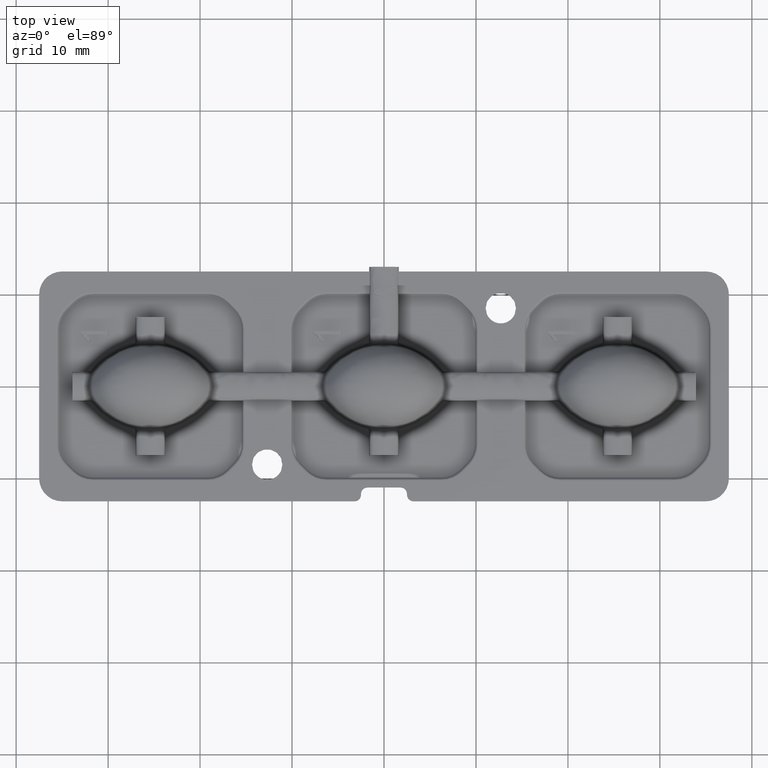
[diagram: clean part render]
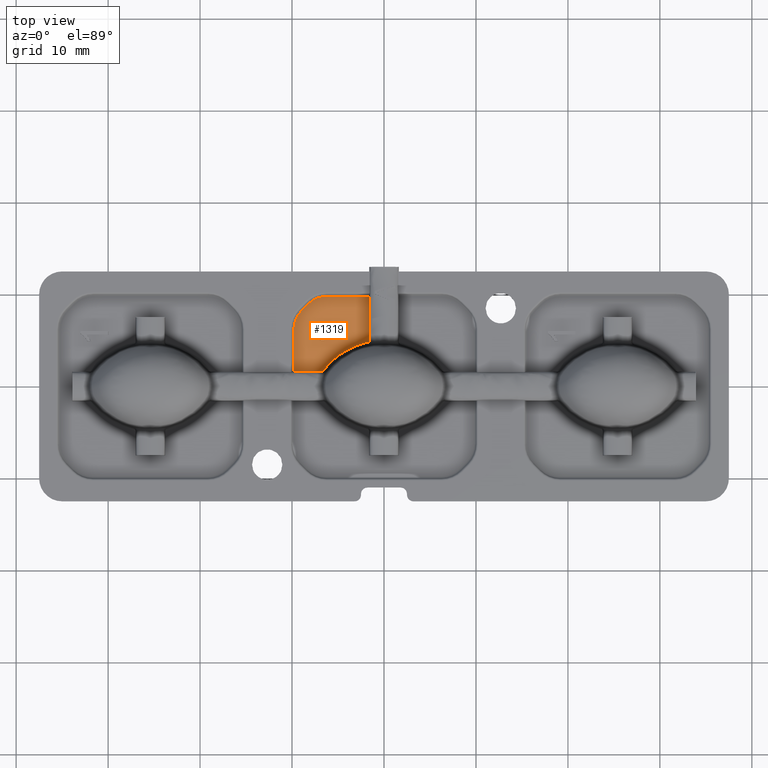
[diagram: same view with one face highlighted and labeled with its STEP entity id]
A machine part, top view. The second image highlights one B-rep face of the part: STEP entity #1319.
In plain terms, the highlighted planar face has unit normal (-0, 0, 1).
Its self-contained STEP definition (entity closure, byte-faithful):
#231 = ORIENTED_EDGE ( 'NONE', *, *, #7504, .T. ) ;
#232 = CARTESIAN_POINT ( 'NONE',  ( -6.937740384615385600, 5.603846153846160600, 1.200000000000000000 ) ) ;
#258 = CARTESIAN_POINT ( 'NONE',  ( -7.558040885806706300, 5.718811044031059300, 1.200000000000164900 ) ) ;
#305 = DIRECTION ( 'NONE',  ( 0.0000000000000000000, 1.000000000000000000, 0.0000000000000000000 ) ) ;
#363 = EDGE_CURVE ( 'NONE', #9153, #15449, #11851, .T. ) ;
#445 = CARTESIAN_POINT ( 'NONE',  ( -1.604986396231099300, 4.868196155882727400, 1.200000000000000200 ) ) ;
#459 = CARTESIAN_POINT ( 'NONE',  ( -4.011915374075210900, 3.972929825219550600, 1.200000000000000000 ) ) ;
#619 = VERTEX_POINT ( 'NONE', #927 ) ;
#694 = VERTEX_POINT ( 'NONE', #1237 ) ;
#786 = ORIENTED_EDGE ( 'NONE', *, *, #9540, .T. ) ;
#793 = ORIENTED_EDGE ( 'NONE', *, *, #16881, .T. ) ;
#845 = LINE ( 'NONE', #6340, #4031 ) ;
#890 = VERTEX_POINT ( 'NONE', #445 ) ;
#927 = CARTESIAN_POINT ( 'NONE',  ( -7.600000000000000500, 5.740865384615391400, 1.199999999999999700 ) ) ;
#1237 = CARTESIAN_POINT ( 'NONE',  ( -4.600000000000000500, 5.988461538461544700, 1.200000000000000000 ) ) ;
#1319 = ADVANCED_FACE ( 'NONE', ( #6639, #14218 ), #5126, .T. ) ;
#1386 = EDGE_CURVE ( 'NONE', #3034, #9153, #9803, .T. ) ;
#1436 = CARTESIAN_POINT ( 'NONE',  ( -7.000000000000000900, 6.257359312880711700, 1.200000000000000000 ) ) ;
#1533 = CARTESIAN_POINT ( 'NONE',  ( -6.257359312880714300, 9.790225092205680800, 1.200000000000000000 ) ) ;
#1596 = CARTESIAN_POINT ( 'NONE',  ( -6.823325650368919200, 5.475331326994972200, 1.200000000000036400 ) ) ;
#1601 = ORIENTED_EDGE ( 'NONE', *, *, #2574, .T. ) ;
#1777 = LINE ( 'NONE', #16281, #16136 ) ;
#1831 = CARTESIAN_POINT ( 'NONE',  ( -2.606174863178185600, 4.593725650440077900, 1.199999999999995500 ) ) ;
#1910 = CARTESIAN_POINT ( 'NONE',  ( -7.600000000000000500, 5.988461538461544700, 1.200000000000000000 ) ) ;
#2081 = DIRECTION ( 'NONE',  ( 1.156482317317871700E-016, -1.000000000000000000, 0.0000000000000000000 ) ) ;
#2295 = ORIENTED_EDGE ( 'NONE', *, *, #15773, .T. ) ;
#2375 = CARTESIAN_POINT ( 'NONE',  ( -8.601666740175854600, 8.601666740175849300, 1.200000000000000000 ) ) ;
#2450 = VECTOR ( 'NONE', #13149, 999.9999999999998900 ) ;
#2574 = EDGE_CURVE ( 'NONE', #5954, #694, #1777, .T. ) ;
#2813 = DIRECTION ( 'NONE',  ( 1.000000000000000000, 0.0000000000000000000, 0.0000000000000000000 ) ) ;
#2814 = LINE ( 'NONE', #10785, #16713 ) ;
#2978 = CARTESIAN_POINT ( 'NONE',  ( -6.722854076430256700, 5.335570782332855100, 1.200000000000028600 ) ) ;
#3034 = VERTEX_POINT ( 'NONE', #13069 ) ;
#3194 = CARTESIAN_POINT ( 'NONE',  ( -1.604986396231099300, 4.868196155882727400, 1.200000000000000200 ) ) ;
#3243 = ORIENTED_EDGE ( 'NONE', *, *, #16773, .T. ) ;
#3339 = CARTESIAN_POINT ( 'NONE',  ( -6.257359312880714300, 6.999999999999999100, 1.200000000000000000 ) ) ;
#3395 = CARTESIAN_POINT ( 'NONE',  ( -6.850000000000001400, 4.911538461538469000, 1.200000000000000000 ) ) ;
#3534 = VECTOR ( 'NONE', #2081, 1000.000000000000000 ) ;
#3666 = CARTESIAN_POINT ( 'NONE',  ( -9.790225092205682600, 6.257359312880711700, 1.200000000000000000 ) ) ;
#3714 = EDGE_CURVE ( 'NONE', #4816, #890, #11322, .T. ) ;
#3782 = VERTEX_POINT ( 'NONE', #4524 ) ;
#3810 = ORIENTED_EDGE ( 'NONE', *, *, #8228, .T. ) ;
#3895 = CARTESIAN_POINT ( 'NONE',  ( -4.600000000000000500, 5.603846153846160600, 1.200000000000000000 ) ) ;
#4026 = LINE ( 'NONE', #4317, #10772 ) ;
#4031 = VECTOR ( 'NONE', #7699, 1000.000000000000000 ) ;
#4200 = EDGE_CURVE ( 'NONE', #694, #3034, #2814, .T. ) ;
#4275 = CARTESIAN_POINT ( 'NONE',  ( -7.042150437660454900, 5.237684320376875000, 1.200000000000164700 ) ) ;
#4303 = CARTESIAN_POINT ( 'NONE',  ( -6.614656695542771900, 5.159598480516741000, 1.200000000000036100 ) ) ;
#4317 = CARTESIAN_POINT ( 'NONE',  ( -7.600000000000000500, 5.740865384615391400, 1.200000000000000000 ) ) ;
#4445 = ORIENTED_EDGE ( 'NONE', *, *, #8530, .T. ) ;
#4524 = CARTESIAN_POINT ( 'NONE',  ( -9.790225092205680800, 1.604986396231092600, 1.200000000000000000 ) ) ;
#4534 = CIRCLE ( 'NONE', #17136, 2.790225092205679900 ) ;
#4580 = LINE ( 'NONE', #5132, #14949 ) ;
#4668 = DIRECTION ( 'NONE',  ( 1.000000000000000000, 0.0000000000000000000, 0.0000000000000000000 ) ) ;
#4687 = EDGE_LOOP ( 'NONE', ( #16395, #8538, #3810, #786, #4445, #231, #7319, #16758 ) ) ;
#4816 = VERTEX_POINT ( 'NONE', #15953 ) ;
#5126 = PLANE ( 'NONE',  #8108 ) ;
#5132 = CARTESIAN_POINT ( 'NONE',  ( -500025.4000000000200, 1.604986396086528000, 1.199999999999999500 ) ) ;
#5150 = LINE ( 'NONE', #13190, #15483 ) ;
#5220 = VECTOR ( 'NONE', #13875, 1000.000000000000000 ) ;
#5632 = CARTESIAN_POINT ( 'NONE',  ( -7.224394052695493500, 5.455771602664684700, 1.200000000000165200 ) ) ;
#5665 = CARTESIAN_POINT ( 'NONE',  ( -6.521623571471385700, 4.975226470040581700, 1.200000000000028800 ) ) ;
#5746 = CARTESIAN_POINT ( 'NONE',  ( -1.604986396231100000, 9.790225092205680800, 1.200000000000000000 ) ) ;
#5827 = CARTESIAN_POINT ( 'NONE',  ( -6.386827302373938600, 2.031551815396831700, 1.200000000000000600 ) ) ;
#5954 = VERTEX_POINT ( 'NONE', #1910 ) ;
#6340 = CARTESIAN_POINT ( 'NONE',  ( -6.495432692307693000, 4.911538461538469000, 1.200000000000000000 ) ) ;
#6424 = CARTESIAN_POINT ( 'NONE',  ( 0.0000000000000000000, 0.0000000000000000000, 1.200000000000000000 ) ) ;
#6483 = DIRECTION ( 'NONE',  ( -0.0000000000000000000, 0.0000000000000000000, 1.000000000000000000 ) ) ;
#6515 = EDGE_CURVE ( 'NONE', #3782, #4816, #4580, .T. ) ;
#6639 = FACE_BOUND ( 'NONE', #8060, .T. ) ;
#6958 = CARTESIAN_POINT ( 'NONE',  ( -6.889967182642414500, 5.554237598758971800, 1.200000000000032400 ) ) ;
#6989 = CARTESIAN_POINT ( 'NONE',  ( -7.400044835377591400, 5.614632407488287000, 1.200000000000165200 ) ) ;
#7149 = VERTEX_POINT ( 'NONE', #3395 ) ;
#7188 = CARTESIAN_POINT ( 'NONE',  ( -5.873035864664185400, 2.602536842732947600, 1.199999999999999700 ) ) ;
#7319 = ORIENTED_EDGE ( 'NONE', *, *, #6515, .T. ) ;
#7504 = EDGE_CURVE ( 'NONE', #13043, #3782, #15134, .T. ) ;
#7515 = CARTESIAN_POINT ( 'NONE',  ( -6.495432692307693900, 4.911538461538469000, 1.199999999999999700 ) ) ;
#7699 = DIRECTION ( 'NONE',  ( -1.000000000000000000, 0.0000000000000000000, 0.0000000000000000000 ) ) ;
#8060 = EDGE_LOOP ( 'NONE', ( #1601, #14872, #13502, #14100, #793, #3243, #2295 ) ) ;
#8108 = AXIS2_PLACEMENT_3D ( 'NONE', #6424, #6483, #15920 ) ;
#8228 = EDGE_CURVE ( 'NONE', #9243, #14699, #14702, .T. ) ;
#8293 = CARTESIAN_POINT ( 'NONE',  ( -6.893375623113197300, 4.995703048152524400, 1.200000000000164900 ) ) ;
#8300 = DIRECTION ( 'NONE',  ( 0.0000000000000000000, -1.000000000000000000, 0.0000000000000000000 ) ) ;
#8355 = CARTESIAN_POINT ( 'NONE',  ( -7.516222306818221500, 5.696506127183965000, 1.200000000000170000 ) ) ;
#8530 = EDGE_CURVE ( 'NONE', #9891, #13043, #4534, .T. ) ;
#8538 = ORIENTED_EDGE ( 'NONE', *, *, #11950, .T. ) ;
#8554 = CARTESIAN_POINT ( 'NONE',  ( -4.886053363695457300, 3.433844317318834000, 1.200000000000000200 ) ) ;
#8827 = CARTESIAN_POINT ( 'NONE',  ( -8.972987083735498400, 8.230346396616205600, 1.200000000000000000 ) ) ;
#9153 = VERTEX_POINT ( 'NONE', #17417 ) ;
#9237 = LINE ( 'NONE', #15296, #5220 ) ;
#9243 = VERTEX_POINT ( 'NONE', #1533 ) ;
#9388 = VECTOR ( 'NONE', #13322, 1000.000000000000000 ) ;
#9540 = EDGE_CURVE ( 'NONE', #14699, #9891, #12742, .T. ) ;
#9690 = CARTESIAN_POINT ( 'NONE',  ( -6.844785303948808200, 5.502301966924834500, 1.200000000000025000 ) ) ;
#9720 = CARTESIAN_POINT ( 'NONE',  ( -7.600000000000000500, 5.740865384615391400, 1.199999999999999700 ) ) ;
#9803 = LINE ( 'NONE', #3895, #9388 ) ;
#9891 = VERTEX_POINT ( 'NONE', #8827 ) ;
#9918 = CARTESIAN_POINT ( 'NONE',  ( -3.555514557773965700, 4.204061411503740700, 1.199999999999995100 ) ) ;
#10161 = CARTESIAN_POINT ( 'NONE',  ( -9.790225092205680800, -1.132222220169760000E-015, 1.200000000000000000 ) ) ;
#10772 = VECTOR ( 'NONE', #305, 1000.000000000000000 ) ;
#10785 = CARTESIAN_POINT ( 'NONE',  ( -4.600000000000000500, 5.988461538461544700, 1.200000000000000000 ) ) ;
#10869 = DIRECTION ( 'NONE',  ( -0.0000000000000000000, 0.0000000000000000000, 1.000000000000000000 ) ) ;
#10942 = CARTESIAN_POINT ( 'NONE',  ( -6.850000000000001400, 4.911538461538469000, 1.200000000000000000 ) ) ;
#11029 = CARTESIAN_POINT ( 'NONE',  ( -6.761103762153211100, 5.392879199446453800, 1.200000000000013900 ) ) ;
#11148 = CARTESIAN_POINT ( 'NONE',  ( -6.681766771066570200, 1.604986396231089100, 1.199999999999999500 ) ) ;
#11263 = CARTESIAN_POINT ( 'NONE',  ( -2.110415589788381800, 4.752806634847349400, 1.200000000000000000 ) ) ;
#11322 = B_SPLINE_CURVE_WITH_KNOTS ( 'NONE', 3,
 ( #11148, #15218, #5827, #15270, #7188, #16629, #8554, #459, #9918, #1831, #11263, #3194 ),
 .UNSPECIFIED., .F., .F.,
 ( 4, 2, 2, 2, 2, 4 ),
 ( 4.640294908182435300E-014, 0.0007676553964865558300, 0.001535310792926708700, 0.003070621585807011800, 0.004605932378687315100, 0.006141243171567618000 ),
 .UNSPECIFIED. ) ;
#11655 = CARTESIAN_POINT ( 'NONE',  ( -8.230346396616209100, 8.972987083735494800, 1.200000000000000000 ) ) ;
#11851 = B_SPLINE_CURVE_WITH_KNOTS ( 'NONE', 3,
 ( #232, #16406, #6958, #9690, #1596, #11029, #2978, #12387, #4303, #13743, #5665, #15111 ),
 .UNSPECIFIED., .F., .F.,
 ( 4, 2, 2, 2, 2, 4 ),
 ( 0.0000000000000000000, 0.0001030506512804426200, 0.0002061013025608852400, 0.0004122026051217704800, 0.0006183039076826557700, 0.0008244052102435409500 ),
 .UNSPECIFIED. ) ;
#11886 = DIRECTION ( 'NONE',  ( -2.891205793294677300E-016, 1.000000000000000000, -0.0000000000000000000 ) ) ;
#11950 = EDGE_CURVE ( 'NONE', #15376, #9243, #9237, .T. ) ;
#12049 = AXIS2_PLACEMENT_3D ( 'NONE', #3339, #12749, #4668 ) ;
#12354 = CARTESIAN_POINT ( 'NONE',  ( -6.938091649743746800, 5.079356112016213800, 1.200000000000164700 ) ) ;
#12387 = CARTESIAN_POINT ( 'NONE',  ( -6.649711029939410000, 5.218891224166650700, 1.200000000000028600 ) ) ;
#12742 = LINE ( 'NONE', #2375, #2450 ) ;
#12749 = DIRECTION ( 'NONE',  ( -0.0000000000000000000, 0.0000000000000000000, 1.000000000000000000 ) ) ;
#13043 = VERTEX_POINT ( 'NONE', #3666 ) ;
#13069 = CARTESIAN_POINT ( 'NONE',  ( -4.600000000000000500, 5.603846153846160600, 1.200000000000000000 ) ) ;
#13149 = DIRECTION ( 'NONE',  ( -0.7071067811865472400, -0.7071067811865479100, 0.0000000000000000000 ) ) ;
#13190 = CARTESIAN_POINT ( 'NONE',  ( -1.604986396086537800, -500000.0000000000600, 1.200000000000000200 ) ) ;
#13217 = DIRECTION ( 'NONE',  ( 1.000000000000000000, 2.891205793294677300E-016, -0.0000000000000000000 ) ) ;
#13322 = DIRECTION ( 'NONE',  ( -1.000000000000000000, 0.0000000000000000000, 0.0000000000000000000 ) ) ;
#13502 = ORIENTED_EDGE ( 'NONE', *, *, #1386, .T. ) ;
#13712 = CARTESIAN_POINT ( 'NONE',  ( -7.099712801407218200, 5.313161079700450700, 1.200000000000165200 ) ) ;
#13743 = CARTESIAN_POINT ( 'NONE',  ( -6.549926021613336100, 5.038047009512659700, 1.200000000000021300 ) ) ;
#13875 = DIRECTION ( 'NONE',  ( -1.000000000000000000, -1.156482317317872000E-016, 0.0000000000000000000 ) ) ;
#14100 = ORIENTED_EDGE ( 'NONE', *, *, #363, .T. ) ;
#14218 = FACE_OUTER_BOUND ( 'NONE', #4687, .T. ) ;
#14699 = VERTEX_POINT ( 'NONE', #11655 ) ;
#14702 = CIRCLE ( 'NONE', #12049, 2.790225092205679900 ) ;
#14775 = EDGE_CURVE ( 'NONE', #890, #15376, #5150, .T. ) ;
#14870 = DIRECTION ( 'NONE',  ( 1.000000000000000000, 0.0000000000000000000, 0.0000000000000000000 ) ) ;
#14872 = ORIENTED_EDGE ( 'NONE', *, *, #4200, .T. ) ;
#14949 = VECTOR ( 'NONE', #13217, 1000.000000000000000 ) ;
#15080 = CARTESIAN_POINT ( 'NONE',  ( -7.291298004945479900, 5.523195192124827500, 1.200000000000165200 ) ) ;
#15111 = CARTESIAN_POINT ( 'NONE',  ( -6.495432692307693900, 4.911538461538469000, 1.199999999999999700 ) ) ;
#15134 = LINE ( 'NONE', #10161, #3534 ) ;
#15218 = CARTESIAN_POINT ( 'NONE',  ( -6.542806246505380200, 1.826478019060697100, 1.200000000000000200 ) ) ;
#15270 = CARTESIAN_POINT ( 'NONE',  ( -6.052018436979395200, 2.419654859141011600, 1.200000000000000600 ) ) ;
#15296 = CARTESIAN_POINT ( 'NONE',  ( -1.132222220169760200E-015, 9.790225092205680800, 1.200000000000000000 ) ) ;
#15376 = VERTEX_POINT ( 'NONE', #5746 ) ;
#15449 = VERTEX_POINT ( 'NONE', #7515 ) ;
#15483 = VECTOR ( 'NONE', #11886, 1000.000000000000000 ) ;
#15773 = EDGE_CURVE ( 'NONE', #619, #5954, #4026, .T. ) ;
#15920 = DIRECTION ( 'NONE',  ( 1.000000000000000000, 0.0000000000000000000, 0.0000000000000000000 ) ) ;
#15953 = CARTESIAN_POINT ( 'NONE',  ( -6.681766771066570200, 1.604986396231089100, 1.199999999999999500 ) ) ;
#16053 = B_SPLINE_CURVE_WITH_KNOTS ( 'NONE', 3,
 ( #10942, #8293, #12354, #4275, #13712, #5632, #15080, #6989, #16434, #8355, #258, #9720 ),
 .UNSPECIFIED., .F., .F.,
 ( 4, 2, 2, 2, 2, 4 ),
 ( 0.0000000000000000000, 0.0002847437424510812500, 0.0005694874849021625100, 0.0008542312273532437600, 0.0009966030985787844400, 0.001138974969804325000 ),
 .UNSPECIFIED. ) ;
#16136 = VECTOR ( 'NONE', #14870, 1000.000000000000000 ) ;
#16281 = CARTESIAN_POINT ( 'NONE',  ( -7.600000000000000500, 5.988461538461544700, 1.200000000000000000 ) ) ;
#16395 = ORIENTED_EDGE ( 'NONE', *, *, #14775, .T. ) ;
#16406 = CARTESIAN_POINT ( 'NONE',  ( -6.913844826160578300, 5.579050651472464900, 1.200000000000028800 ) ) ;
#16434 = CARTESIAN_POINT ( 'NONE',  ( -7.437510762225047100, 5.643868414566914500, 1.200000000000159600 ) ) ;
#16629 = CARTESIAN_POINT ( 'NONE',  ( -5.306537978654928300, 3.122675472347292000, 1.199999999999999300 ) ) ;
#16713 = VECTOR ( 'NONE', #8300, 1000.000000000000000 ) ;
#16758 = ORIENTED_EDGE ( 'NONE', *, *, #3714, .T. ) ;
#16773 = EDGE_CURVE ( 'NONE', #7149, #619, #16053, .T. ) ;
#16881 = EDGE_CURVE ( 'NONE', #15449, #7149, #845, .T. ) ;
#17136 = AXIS2_PLACEMENT_3D ( 'NONE', #1436, #10869, #2813 ) ;
#17417 = CARTESIAN_POINT ( 'NONE',  ( -6.937740384615385600, 5.603846153846160600, 1.200000000000000000 ) ) ;